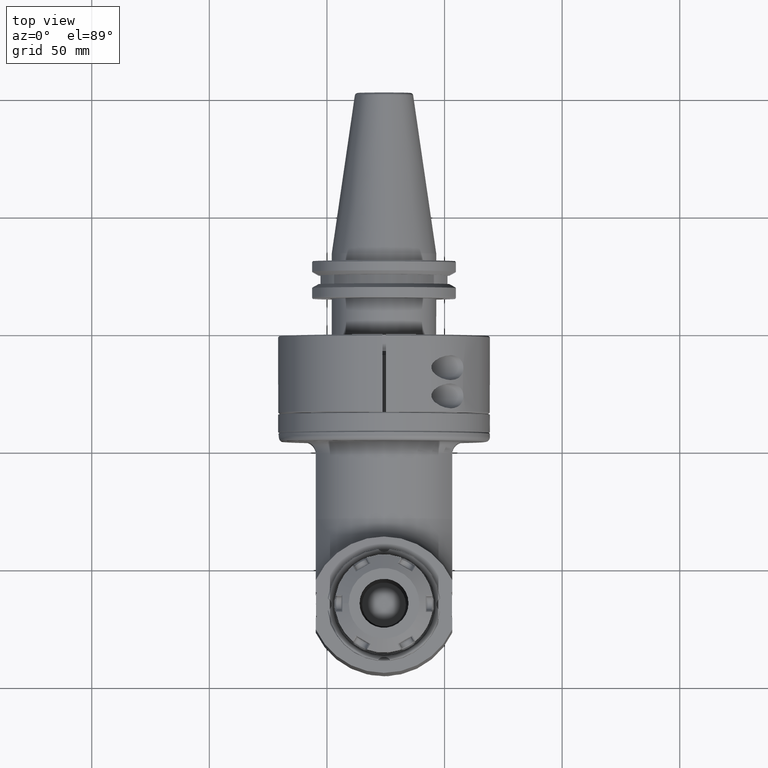
[diagram: clean part render]
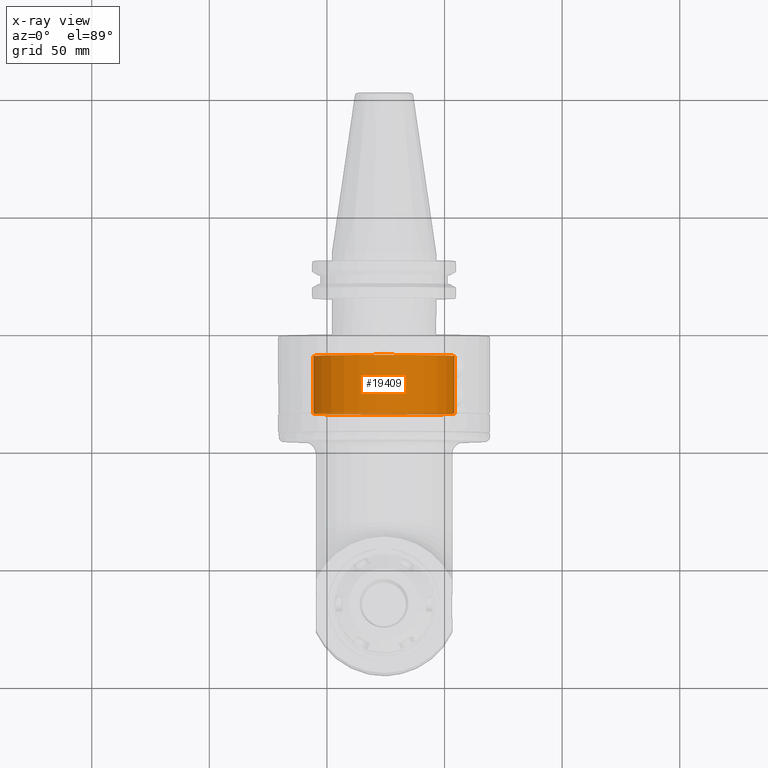
[diagram: x-ray — body ghosted, one internal face saturated and labeled with its STEP entity id]
A machine part, top view, then the same camera in x-ray: the body is ghosted and one INTERNAL B-rep face — a face not visible from any outside direction — is saturated and labeled: STEP entity #19409.
In plain terms, the highlighted cylindrical surface (bore or boss wall) has radius 30 mm, axis along (0, -1, -0).
Its self-contained STEP definition (entity closure, byte-faithful):
#1150=CIRCLE('',#20991,30.);
#1178=CIRCLE('',#21041,30.);
#1445=CYLINDRICAL_SURFACE('',#21040,30.);
#1976=FACE_OUTER_BOUND('',#3115,.T.);
#3115=EDGE_LOOP('',(#15233,#15234,#15235,#15236));
#4663=LINE('',#31862,#6594);
#6594=VECTOR('',#24641,30.);
#8638=VERTEX_POINT('',#31755);
#8673=VERTEX_POINT('',#31861);
#10988=EDGE_CURVE('',#8638,#8638,#1150,.T.);
#11037=EDGE_CURVE('',#8638,#8673,#4663,.T.);
#11038=EDGE_CURVE('',#8673,#8673,#1178,.T.);
#15233=ORIENTED_EDGE('',*,*,#10988,.T.);
#15234=ORIENTED_EDGE('',*,*,#11037,.T.);
#15235=ORIENTED_EDGE('',*,*,#11038,.T.);
#15236=ORIENTED_EDGE('',*,*,#11037,.F.);
#19409=ADVANCED_FACE('',(#1976),#1445,.T.);
#20991=AXIS2_PLACEMENT_3D('',#31756,#24520,#24521);
#21040=AXIS2_PLACEMENT_3D('',#31860,#24639,#24640);
#21041=AXIS2_PLACEMENT_3D('',#31863,#24642,#24643);
#24520=DIRECTION('center_axis',(0.,1.,0.));
#24521=DIRECTION('ref_axis',(1.,0.,0.));
#24639=DIRECTION('center_axis',(0.,-1.,0.));
#24640=DIRECTION('ref_axis',(-1.,0.,0.));
#24641=DIRECTION('',(0.,1.,0.));
#24642=DIRECTION('center_axis',(0.,-1.,0.));
#24643=DIRECTION('ref_axis',(1.,0.,0.));
#31755=CARTESIAN_POINT('',(30.,82.,3.67394039744206E-15));
#31756=CARTESIAN_POINT('Origin',(0.,82.,0.));
#31860=CARTESIAN_POINT('Origin',(0.,112.35,0.));
#31861=CARTESIAN_POINT('',(30.,106.5,3.67394039744206E-15));
#31862=CARTESIAN_POINT('',(30.,112.35,3.67394039744206E-15));
#31863=CARTESIAN_POINT('Origin',(0.,106.5,0.));